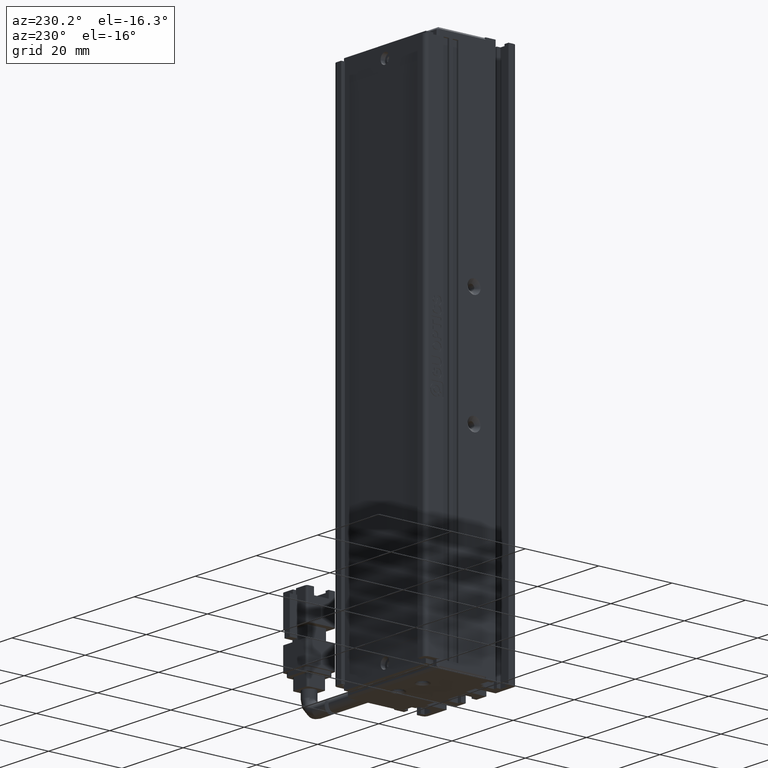
[diagram: clean part render]
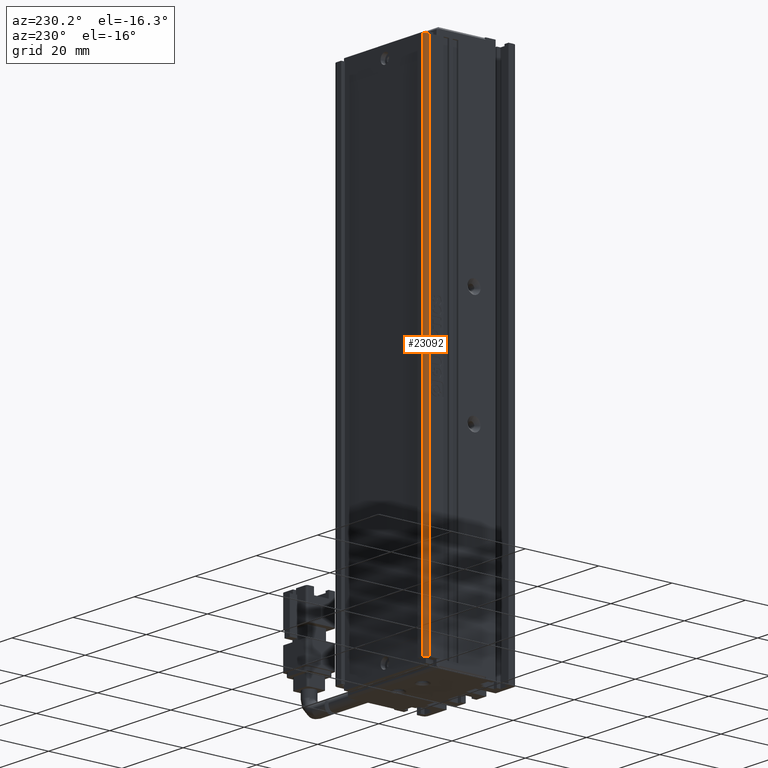
[diagram: same view with one face highlighted and labeled with its STEP entity id]
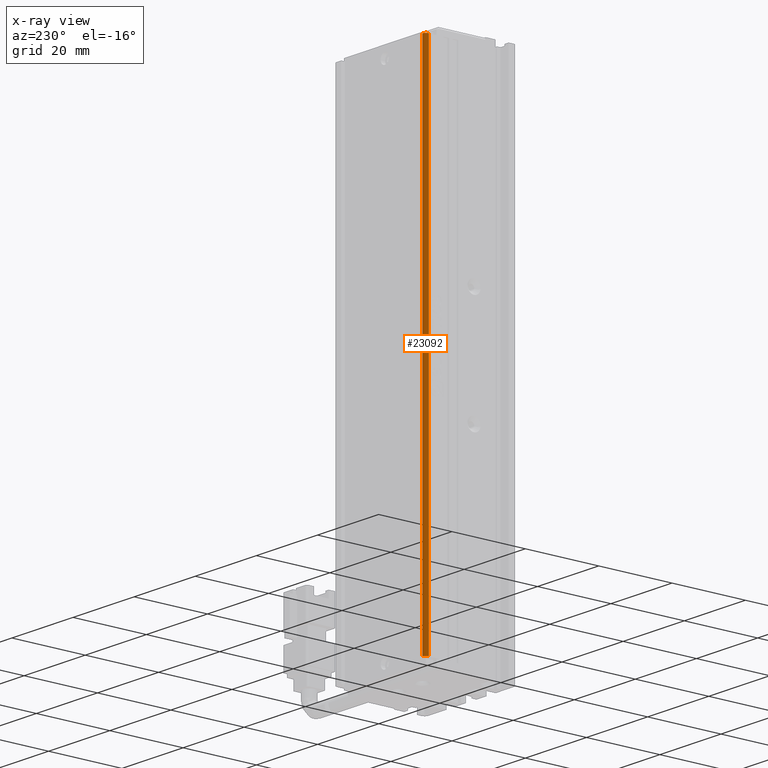
[diagram: x-ray of the same camera — body ghosted, the highlighted face saturated]
A machine part, auxiliary view. The second image highlights one B-rep face of the part: STEP entity #23092.
The next image is the same camera in x-ray: the body ghosted, the highlighted face saturated — about 0% of this face is hidden behind the body in this view.
In plain terms, the highlighted cylindrical surface (edge-blend (fillet) strip) has radius 1 mm, axis along (-0, -0, -1).
Its self-contained STEP definition (entity closure, byte-faithful):
#970 = DIRECTION ( 'NONE',  ( -0.0000000000000000000, -0.0000000000000000000, -1.000000000000000000 ) ) ;
#1440 = VERTEX_POINT ( 'NONE', #22793 ) ;
#1873 = DIRECTION ( 'NONE',  ( -1.000000000000000000, 0.0000000000000000000, 0.0000000000000000000 ) ) ;
#2758 = EDGE_CURVE ( 'NONE', #15217, #1440, #34659, .T. ) ;
#4063 = ORIENTED_EDGE ( 'NONE', *, *, #34857, .T. ) ;
#5056 = VECTOR ( 'NONE', #970, 1000.000000000000000 ) ;
#7847 = DIRECTION ( 'NONE',  ( -0.0000000000000000000, -0.0000000000000000000, -1.000000000000000000 ) ) ;
#7956 = CIRCLE ( 'NONE', #8346, 0.9999999999999974500 ) ;
#8346 = AXIS2_PLACEMENT_3D ( 'NONE', #16236, #36148, #19104 ) ;
#9352 = DIRECTION ( 'NONE',  ( -0.0000000000000000000, -0.0000000000000000000, -1.000000000000000000 ) ) ;
#9506 = CYLINDRICAL_SURFACE ( 'NONE', #30744, 0.9999999999999974500 ) ;
#9714 = ORIENTED_EDGE ( 'NONE', *, *, #2758, .T. ) ;
#11756 = CARTESIAN_POINT ( 'NONE',  ( 25.92537974683541800, 34.69594479660387500, -183.0000000000000000 ) ) ;
#15217 = VERTEX_POINT ( 'NONE', #15979 ) ;
#15979 = CARTESIAN_POINT ( 'NONE',  ( 26.92537974683542100, 35.69594479660387500, -47.00000000000000000 ) ) ;
#16201 = CARTESIAN_POINT ( 'NONE',  ( 26.92537974683542100, 34.69594479660387500, -45.00000000000000000 ) ) ;
#16236 = CARTESIAN_POINT ( 'NONE',  ( 26.92537974683542100, 34.69594479660387500, -183.0000000000000000 ) ) ;
#16469 = CARTESIAN_POINT ( 'NONE',  ( 25.92537974683541800, 34.69594479660387500, -45.00000000000000000 ) ) ;
#17569 = VERTEX_POINT ( 'NONE', #11756 ) ;
#19104 = DIRECTION ( 'NONE',  ( -1.000000000000000000, 0.0000000000000000000, 0.0000000000000000000 ) ) ;
#19917 = FACE_OUTER_BOUND ( 'NONE', #32590, .T. ) ;
#22627 = ORIENTED_EDGE ( 'NONE', *, *, #26451, .F. ) ;
#22793 = CARTESIAN_POINT ( 'NONE',  ( 26.92537974683542100, 35.69594479660387500, -183.0000000000000000 ) ) ;
#23092 = ADVANCED_FACE ( 'NONE', ( #19917 ), #9506, .T. ) ;
#23623 = ORIENTED_EDGE ( 'NONE', *, *, #24445, .T. ) ;
#23786 = CARTESIAN_POINT ( 'NONE',  ( 26.92537974683542100, 35.69594479660387500, -45.00000000000000000 ) ) ;
#24445 = EDGE_CURVE ( 'NONE', #29607, #15217, #29846, .T. ) ;
#24815 = DIRECTION ( 'NONE',  ( -0.0000000000000000000, -0.0000000000000000000, -1.000000000000000000 ) ) ;
#26350 = VECTOR ( 'NONE', #7847, 1000.000000000000000 ) ;
#26451 = EDGE_CURVE ( 'NONE', #29607, #17569, #33909, .T. ) ;
#26620 = CARTESIAN_POINT ( 'NONE',  ( 26.92537974683542100, 34.69594479660387500, -47.00000000000000000 ) ) ;
#29448 = DIRECTION ( 'NONE',  ( -1.000000000000000000, 0.0000000000000000000, 0.0000000000000000000 ) ) ;
#29607 = VERTEX_POINT ( 'NONE', #35972 ) ;
#29846 = CIRCLE ( 'NONE', #30290, 0.9999999999999974500 ) ;
#30290 = AXIS2_PLACEMENT_3D ( 'NONE', #26620, #9352, #29448 ) ;
#30744 = AXIS2_PLACEMENT_3D ( 'NONE', #16201, #24815, #1873 ) ;
#32590 = EDGE_LOOP ( 'NONE', ( #4063, #22627, #23623, #9714 ) ) ;
#33909 = LINE ( 'NONE', #16469, #26350 ) ;
#34659 = LINE ( 'NONE', #23786, #5056 ) ;
#34857 = EDGE_CURVE ( 'NONE', #1440, #17569, #7956, .T. ) ;
#35972 = CARTESIAN_POINT ( 'NONE',  ( 25.92537974683541800, 34.69594479660387500, -47.00000000000000000 ) ) ;
#36148 = DIRECTION ( 'NONE',  ( 0.0000000000000000000, 0.0000000000000000000, 1.000000000000000000 ) ) ;